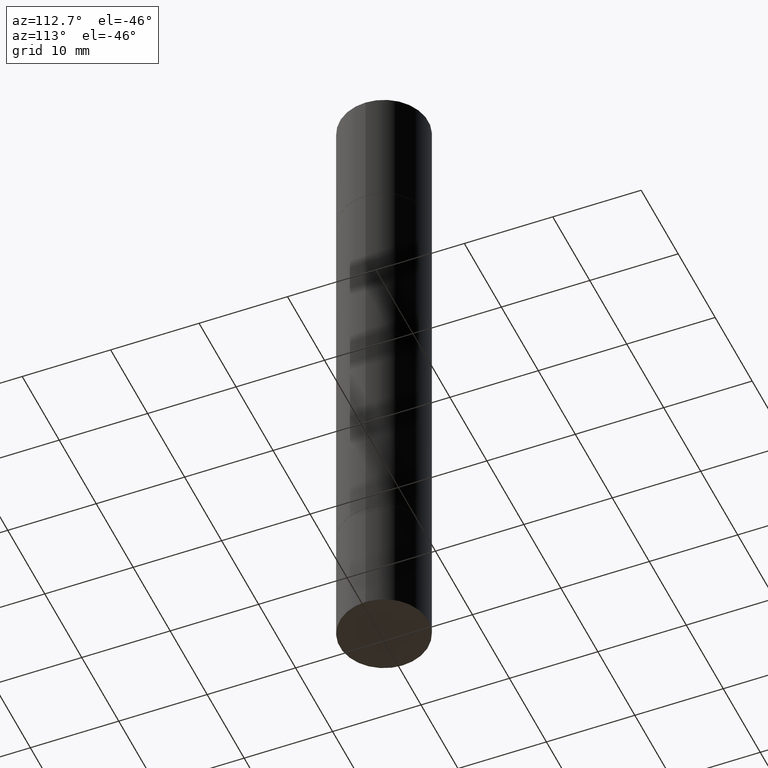
[diagram: clean part render]
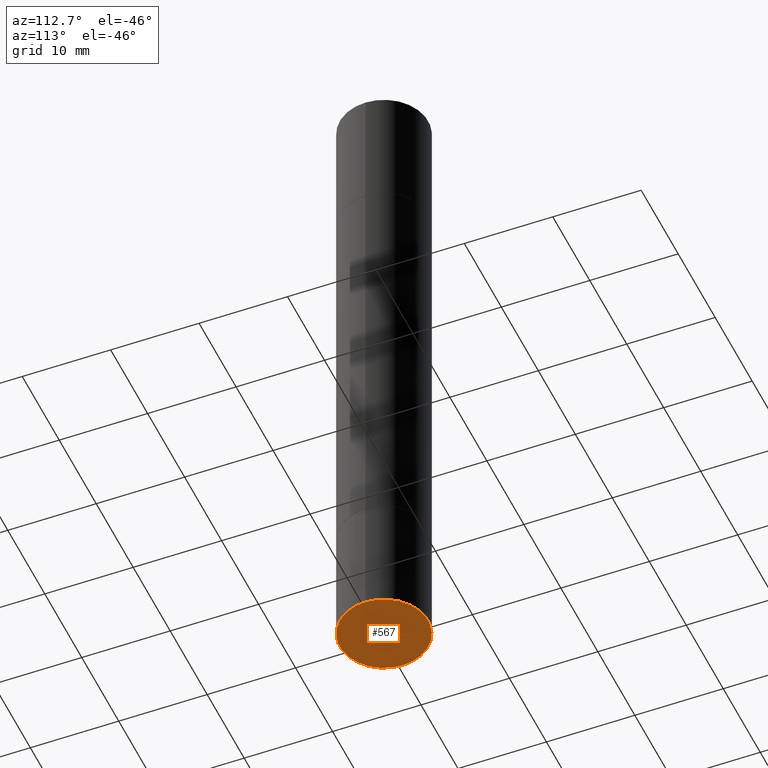
[diagram: same view with one face highlighted and labeled with its STEP entity id]
A machine part, auxiliary view. The second image highlights one B-rep face of the part: STEP entity #567.
In plain terms, the highlighted planar face has unit normal (0, -0, -1).
Its self-contained STEP definition (entity closure, byte-faithful):
#60 = CARTESIAN_POINT ( 'NONE',  ( 7.220980290903470182E-29, -1.030964609733603853E-14, -2.952799999999999869 ) ) ;
#74 = AXIS2_PLACEMENT_3D ( 'NONE', #659, #279, #378 ) ;
#122 = CARTESIAN_POINT ( 'NONE',  ( 7.220980290903470182E-29, -1.030964609733603853E-14, -2.952799999999999869 ) ) ;
#155 = CARTESIAN_POINT ( 'NONE',  ( 0.1968500000000000250, -1.168424230043858014E-14, -2.952799999999999869 ) ) ;
#162 = DIRECTION ( 'NONE',  ( -2.445468806185136597E-29, 3.491481338843145583E-15, 1.000000000000000000 ) ) ;
#186 = FACE_OUTER_BOUND ( 'NONE', #238, .T. ) ;
#209 = VERTEX_POINT ( 'NONE', #393 ) ;
#219 = DIRECTION ( 'NONE',  ( 1.000000000000000000, -6.982962677686267499E-15, 0.000000000000000000 ) ) ;
#236 = DIRECTION ( 'NONE',  ( 1.000000000000000000, -6.982962677686267499E-15, 0.000000000000000000 ) ) ;
#238 = EDGE_LOOP ( 'NONE', ( #670, #318 ) ) ;
#252 = AXIS2_PLACEMENT_3D ( 'NONE', #60, #162, #219 ) ;
#276 = DIRECTION ( 'NONE',  ( -2.445468806185136597E-29, 3.491481338843145583E-15, 1.000000000000000000 ) ) ;
#279 = DIRECTION ( 'NONE',  ( 2.438088387897960049E-29, -3.491481338843145188E-15, -1.000000000000000000 ) ) ;
#318 = ORIENTED_EDGE ( 'NONE', *, *, #615, .F. ) ;
#378 = DIRECTION ( 'NONE',  ( -1.000000000000000000, 6.982962677686265922E-15, -4.876176775795935793E-29 ) ) ;
#381 = PLANE ( 'NONE',  #74 ) ;
#393 = CARTESIAN_POINT ( 'NONE',  ( -0.1968500000000000250, -7.948690465007109319E-15, -2.952799999999999869 ) ) ;
#423 = VERTEX_POINT ( 'NONE', #155 ) ;
#452 = AXIS2_PLACEMENT_3D ( 'NONE', #122, #276, #236 ) ;
#479 = EDGE_CURVE ( 'NONE', #423, #209, #483, .T. ) ;
#483 = CIRCLE ( 'NONE', #252, 0.1968500000000000250 ) ;
#567 = ADVANCED_FACE ( 'NONE', ( #186 ), #381, .T. ) ;
#615 = EDGE_CURVE ( 'NONE', #209, #423, #641, .T. ) ;
#641 = CIRCLE ( 'NONE', #452, 0.1968500000000000250 ) ;
#659 = CARTESIAN_POINT ( 'NONE',  ( 1.374596203102613789E-15, 0.1968499999999896999, -2.952800000000000313 ) ) ;
#670 = ORIENTED_EDGE ( 'NONE', *, *, #479, .F. ) ;